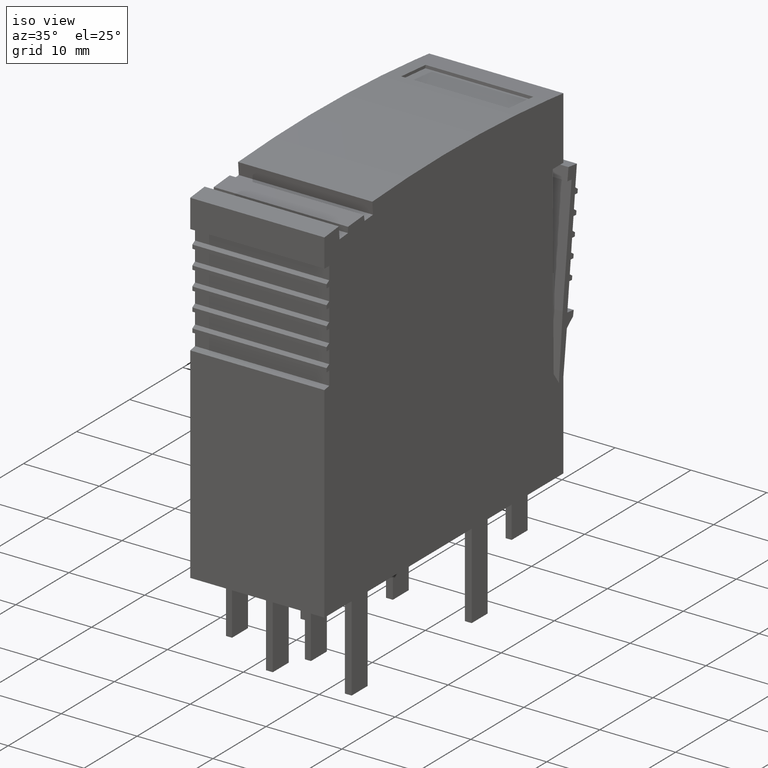
[diagram: clean part render]
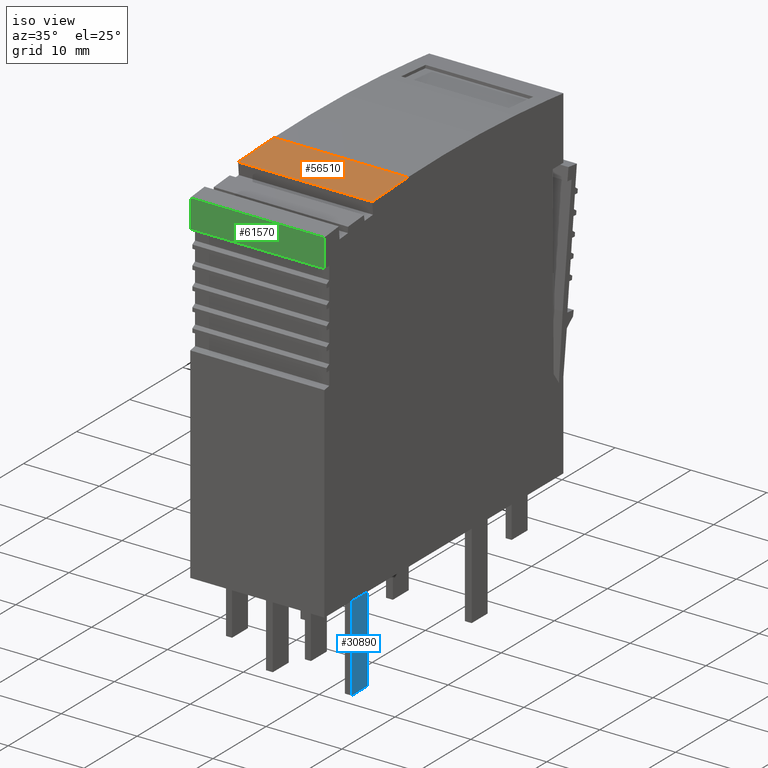
[diagram: same view with three faces highlighted in distinct colors, each labeled with its STEP entity id]
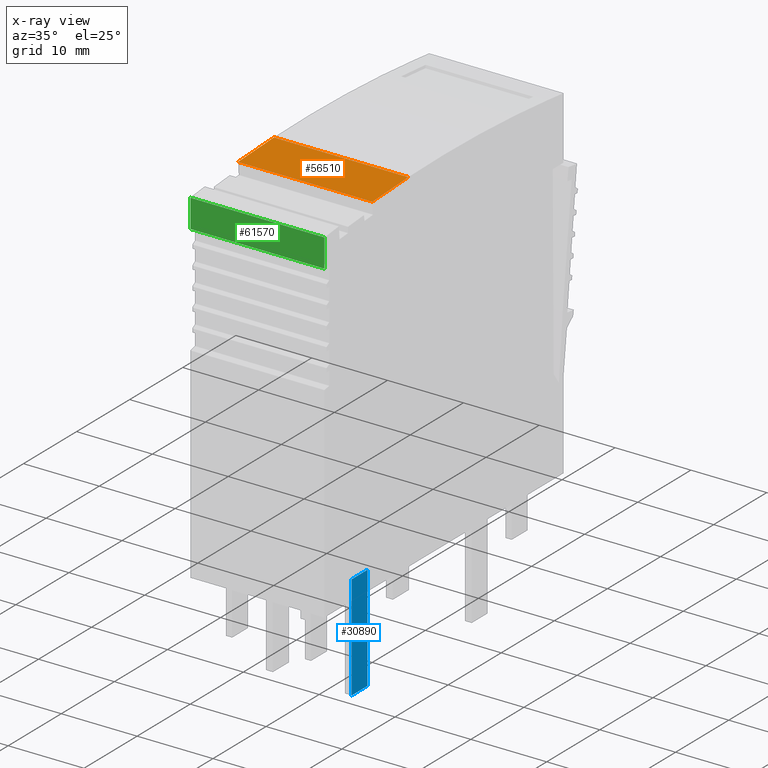
[diagram: x-ray of the same camera — body ghosted, the three highlighted faces saturated]
A machine part, iso view with three faces highlighted in distinct colors.
The next image is the same camera in x-ray (body ghosted, the three faces saturated) — at least one of them is partly hidden behind the body in this view.
Their STEP definitions:

[orange] entity #56510 — the highlighted planar face has unit normal (-0, 0.0504, -0.9987).
#3160=CARTESIAN_POINT('',(150.903288460466,102.921051995488,
6.55548592435768));
#3170=VERTEX_POINT('',#3160);
#3200=CARTESIAN_POINT('',(111.236365997237,104.924495318305,
6.55548592610147));
#3210=DIRECTION('',(-0.99872697423682,0.0504423525597932,
4.39048713932659E-11));
#3220=VECTOR('',#3210,1.);
#3230=LINE('',#3200,#3220);
#3240=CARTESIAN_POINT('',(157.658757965284,102.57985586956,
6.5554859240607));
#3250=VERTEX_POINT('',#3240);
#3260=EDGE_CURVE('',#3250,#3170,#3230,.T.);
#10840=CARTESIAN_POINT('',(157.658757966056,102.579855869482,
-11.144514076686));
#10850=VERTEX_POINT('',#10840);
#10880=CARTESIAN_POINT('',(111.236365997237,104.924495318266,
-11.144514076686));
#10890=DIRECTION('',(-0.99872697423682,0.0504423525597932,
-1.39966660178487E-18));
#10900=VECTOR('',#10890,1.);
#10910=LINE('',#10880,#10900);
#10920=CARTESIAN_POINT('',(150.903288459689,102.921051995514,
-11.144514076686));
#10930=VERTEX_POINT('',#10920);
#10940=EDGE_CURVE('',#10850,#10930,#10910,.T.);
#56180=CARTESIAN_POINT('',(150.90328845999,102.921051995488,
-4.29451407564581));
#56190=DIRECTION('',(4.39608349722675E-11,2.77478453546331E-17,1.));
#56200=VECTOR('',#56190,1.);
#56210=LINE('',#56180,#56200);
#56220=EDGE_CURVE('',#10930,#3170,#56210,.T.);
#56350=CARTESIAN_POINT('',(157.622908435743,102.581666509096,
-21.9945164799161));
#56360=DIRECTION('',(-0.0504423525597932,-0.99872697423682,
2.21751564901564E-12));
#56370=DIRECTION('',(-0.99872697423682,0.0504423525597932,
4.39048702971103E-11));
#56380=AXIS2_PLACEMENT_3D('',#56350,#56360,#56370);
#56390=PLANE('',#56380);
#56400=ORIENTED_EDGE('',*,*,#56220,.T.);
#56410=ORIENTED_EDGE('',*,*,#10940,.T.);
#56420=CARTESIAN_POINT('',(157.658757965757,102.579855869512,
-4.29451407564581));
#56430=DIRECTION('',(-4.35918508913199E-11,4.42202050643954E-12,1.));
#56440=VECTOR('',#56430,1.);
#56450=LINE('',#56420,#56440);
#56460=EDGE_CURVE('',#10850,#3250,#56450,.T.);
#56470=ORIENTED_EDGE('',*,*,#56460,.F.);
#56480=ORIENTED_EDGE('',*,*,#3260,.F.);
#56490=EDGE_LOOP('',(#56480,#56470,#56410,#56400));
#56500=FACE_OUTER_BOUND('',#56490,.T.);
#56510=ADVANCED_FACE('',(#56500),#56390,.F.);

[blue] entity #30890 — the highlighted planar face has unit normal (1, -0, -0).
#16450=CARTESIAN_POINT('',(153.976442648636,56.4590821833395,
-7.94451406721101));
#16460=VERTEX_POINT('',#16450);
#16490=CARTESIAN_POINT('',(96.2363660497187,56.4590821833395,
-7.94451406721101));
#16500=DIRECTION('',(-1.,-1.81672225352878E-26,1.50463276905253E-36));
#16510=VECTOR('',#16500,1.);
#16520=LINE('',#16490,#16510);
#16530=CARTESIAN_POINT('',(156.976442647341,56.4590821833395,
-7.94451406721101));
#16540=VERTEX_POINT('',#16530);
#16550=EDGE_CURVE('',#16540,#16460,#16520,.T.);
#29780=CARTESIAN_POINT('',(156.976442647341,53.560123,-7.94451406721101)
);
#29790=DIRECTION('',(2.34090683382861E-26,-1.,2.77478453548207E-17));
#29800=VECTOR('',#29790,1.);
#29810=LINE('',#29780,#29800);
#29820=CARTESIAN_POINT('',(156.976442647341,42.6090823777492,
-7.94451406721101));
#29830=VERTEX_POINT('',#29820);
#29840=EDGE_CURVE('',#16540,#29830,#29810,.T.);
#30520=CARTESIAN_POINT('',(153.976442648636,42.6090823774854,
-7.94451406721101));
#30530=VERTEX_POINT('',#30520);
#30560=CARTESIAN_POINT('',(153.976442648636,53.560123,-7.94451406721101)
);
#30570=DIRECTION('',(2.34090683382861E-26,-1.,2.77478453548207E-17));
#30580=VECTOR('',#30570,1.);
#30590=LINE('',#30560,#30580);
#30600=EDGE_CURVE('',#16460,#30530,#30590,.T.);
#30730=CARTESIAN_POINT('',(156.976442647341,56.4590821833395,
-7.94451406721101));
#30740=DIRECTION('',(-1.50463205177811E-36,-2.77478453548207E-17,-1.));
#30750=DIRECTION('',(-1.,-2.58497339728593E-26,1.50463276905253E-36));
#30760=AXIS2_PLACEMENT_3D('',#30730,#30740,#30750);
#30770=PLANE('',#30760);
#30780=ORIENTED_EDGE('',*,*,#30600,.F.);
#30790=CARTESIAN_POINT('',(96.2363660497187,42.6090823724088,
-7.94451406721101));
#30800=DIRECTION('',(1.,8.7922114033708E-11,6.4623485340659E-27));
#30810=VECTOR('',#30800,1.);
#30820=LINE('',#30790,#30810);
#30830=EDGE_CURVE('',#30530,#29830,#30820,.T.);
#30840=ORIENTED_EDGE('',*,*,#30830,.F.);
#30850=ORIENTED_EDGE('',*,*,#29840,.T.);
#30860=ORIENTED_EDGE('',*,*,#16550,.F.);
#30870=EDGE_LOOP('',(#30860,#30850,#30840,#30780));
#30880=FACE_OUTER_BOUND('',#30870,.T.);
#30890=ADVANCED_FACE('',(#30880),#30770,.T.);

[green] entity #61570 — the highlighted planar face has unit normal (0, -1, -0).
#3840=CARTESIAN_POINT('',(166.67605519393,101.764555169155,
6.55548592366429));
#3850=VERTEX_POINT('',#3840);
#3880=CARTESIAN_POINT('',(166.676055193932,38.060123,6.55548592366429));
#3890=DIRECTION('',(2.37448949761861E-14,-1.,2.77478443109747E-17));
#3900=VECTOR('',#3890,1.);
#3910=LINE('',#3880,#3900);
#3920=CARTESIAN_POINT('',(166.67605519393,98.0342102273606,
6.55548592366429));
#3930=VERTEX_POINT('',#3920);
#3940=EDGE_CURVE('',#3850,#3930,#3910,.T.);
#8390=CARTESIAN_POINT('',(166.676055193453,101.764555169155,
-4.29451407564581));
#8400=DIRECTION('',(-4.39608349722675E-11,-2.77478453548207E-17,-1.));
#8410=VECTOR('',#8400,1.);
#8420=LINE('',#8390,#8410);
#8430=CARTESIAN_POINT('',(166.676055193152,101.764555169155,
-11.144514076686));
#8440=VERTEX_POINT('',#8430);
#8450=EDGE_CURVE('',#3850,#8440,#8420,.T.);
#10250=CARTESIAN_POINT('',(166.676055193152,98.0342102273606,
-11.144514076686));
#10260=VERTEX_POINT('',#10250);
#10290=CARTESIAN_POINT('',(166.676055193154,38.060123,-11.144514076686))
;
#10300=DIRECTION('',(2.37448949761861E-14,-1.,2.77478453548207E-17));
#10310=VECTOR('',#10300,1.);
#10320=LINE('',#10290,#10310);
#10330=EDGE_CURVE('',#8440,#10260,#10320,.T.);
#61230=CARTESIAN_POINT('',(166.676055193454,98.0342102273606,
-4.29451407564581));
#61240=DIRECTION('',(4.39608349722675E-11,2.77478453548207E-17,1.));
#61250=VECTOR('',#61240,1.);
#61260=LINE('',#61230,#61250);
#61270=EDGE_CURVE('',#10260,#3930,#61260,.T.);
#61460=CARTESIAN_POINT('',(166.67605519393,98.0342102273606,
6.55548592399369));
#61470=DIRECTION('',(1.,2.37448949761849E-14,-4.39608349722675E-11));
#61480=DIRECTION('',(2.37448949761861E-14,-1.,2.77478443109753E-17));
#61490=AXIS2_PLACEMENT_3D('',#61460,#61470,#61480);
#61500=PLANE('',#61490);
#61510=ORIENTED_EDGE('',*,*,#8450,.F.);
#61520=ORIENTED_EDGE('',*,*,#10330,.F.);
#61530=ORIENTED_EDGE('',*,*,#61270,.F.);
#61540=ORIENTED_EDGE('',*,*,#3940,.T.);
#61550=EDGE_LOOP('',(#61540,#61530,#61520,#61510));
#61560=FACE_OUTER_BOUND('',#61550,.T.);
#61570=ADVANCED_FACE('',(#61560),#61500,.T.);